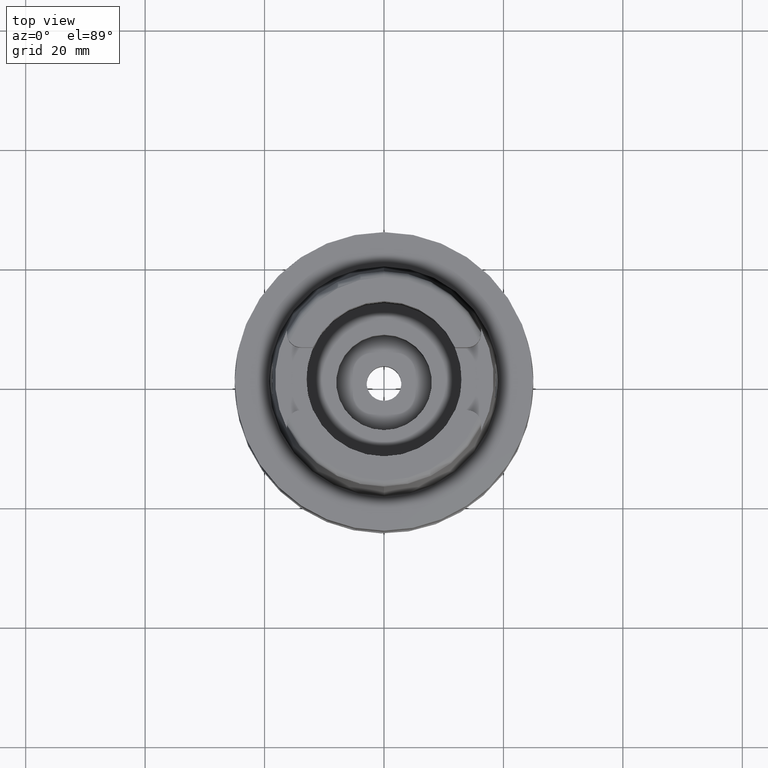
[diagram: clean part render]
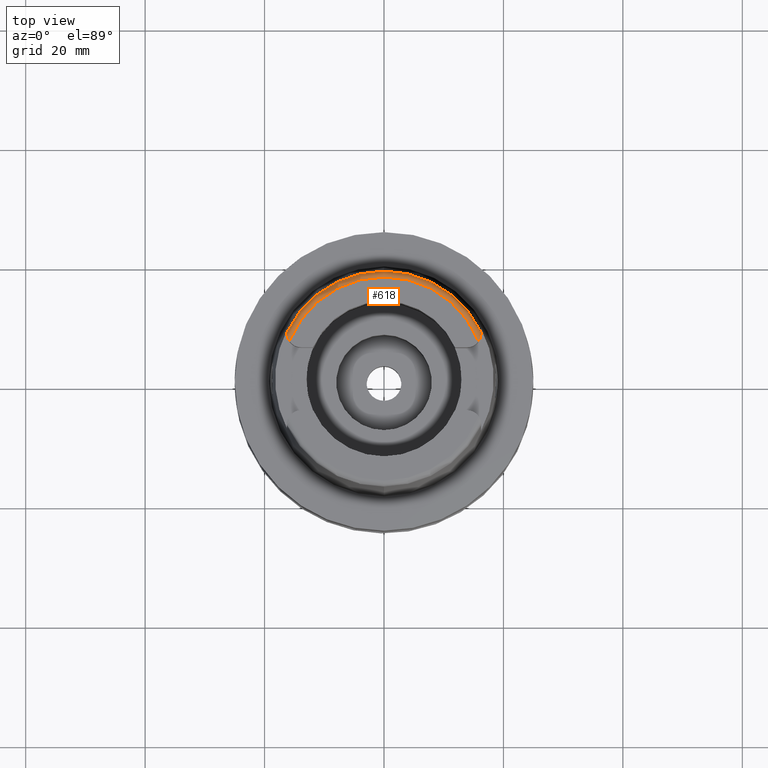
[diagram: same view with one face highlighted and labeled with its STEP entity id]
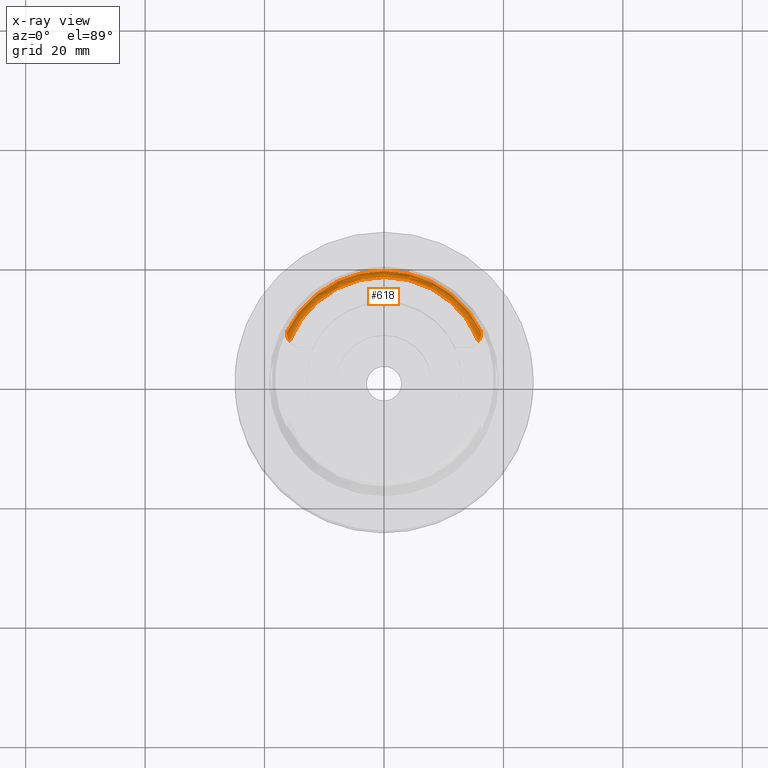
[diagram: x-ray of the same camera — body ghosted, the highlighted face saturated]
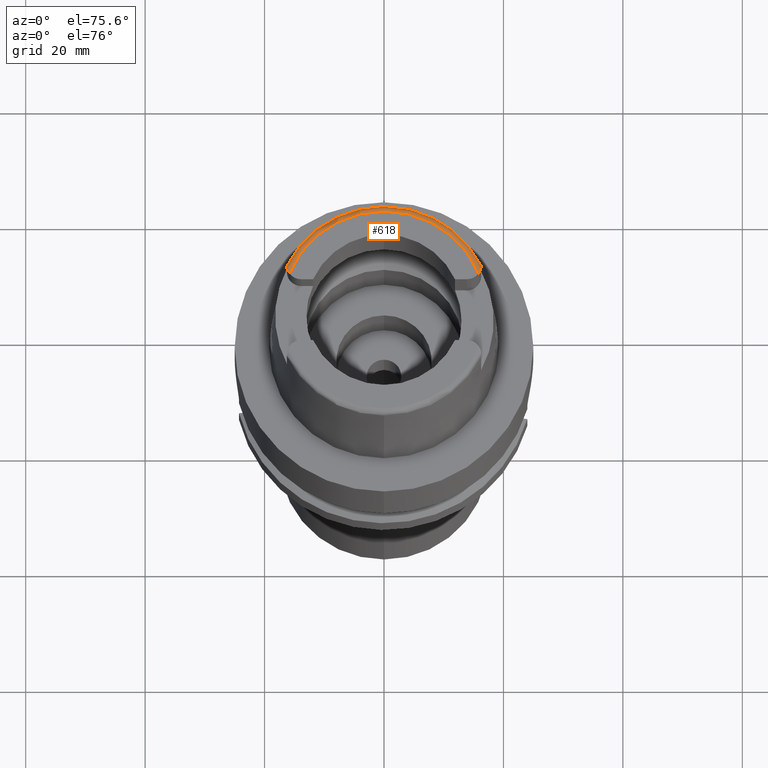
[diagram: same view with one face highlighted and labeled with its STEP entity id]
A machine part, top view. The second image highlights one B-rep face of the part: STEP entity #618.
The next image is the same camera in x-ray: the body ghosted, the highlighted face saturated — about 0% of this face is hidden behind the body in this view.
A second angle (auxiliary view) of the same face is appended — the face is thin or edge-on in the first view.
In plain terms, the highlighted toroidal blend (fillet) surface has major radius 17.0488 mm and minor (blend) radius 1 mm.
Its self-contained STEP definition (entity closure, byte-faithful):
#43 = FACE_OUTER_BOUND ( 'NONE', #3732, .T. ) ;
#183 = CARTESIAN_POINT ( 'NONE',  ( -16.18554076064008385, 7.055521886518313579, 24.79586306668399232 ) ) ;
#230 = DIRECTION ( 'NONE',  ( -0.0008255998758100714869, -0.9999996591923645539, 0.0000000000000000000 ) ) ;
#258 = CARTESIAN_POINT ( 'NONE',  ( -16.26000000000000156, 7.649999999999999467, 24.38968791394999869 ) ) ;
#342 = EDGE_CURVE ( 'NONE', #2252, #1359, #4724, .T. ) ;
#439 = EDGE_CURVE ( 'NONE', #644, #2252, #801, .T. ) ;
#593 = CARTESIAN_POINT ( 'NONE',  ( -16.12967067124113640, 6.861665314423088802, 24.88364652657513432 ) ) ;
#605 = CARTESIAN_POINT ( 'NONE',  ( 16.20468902184572713, 7.121967773455988748, 24.76576639495302246 ) ) ;
#618 = ADVANCED_FACE ( 'NONE', ( #43 ), #4063, .T. ) ;
#644 = VERTEX_POINT ( 'NONE', #4825 ) ;
#670 = CARTESIAN_POINT ( 'NONE',  ( -15.84131538932999739, 6.301800480794000237, 25.00000000000000000 ) ) ;
#680 = EDGE_CURVE ( 'NONE', #3957, #4911, #1752, .T. ) ;
#741 = EDGE_CURVE ( 'NONE', #1711, #4679, #4882, .T. ) ;
#801 = B_SPLINE_CURVE_WITH_KNOTS ( 'NONE', 3,
 ( #1116, #4917, #1092, #4489 ),
 .UNSPECIFIED., .F., .F.,
 ( 4, 4 ),
 ( 0.0000000000000000000, 1.000000000000000000 ),
 .UNSPECIFIED. ) ;
#828 = ORIENTED_EDGE ( 'NONE', *, *, #342, .F. ) ;
#851 = B_SPLINE_CURVE_WITH_KNOTS ( 'NONE', 3,
 ( #1052, #3111, #1869, #4401 ),
 .UNSPECIFIED., .F., .F.,
 ( 4, 4 ),
 ( 0.0000000000000000000, 1.000000000000000000 ),
 .UNSPECIFIED. ) ;
#877 = CIRCLE ( 'NONE', #2205, 17.04875252221999560 ) ;
#980 = ORIENTED_EDGE ( 'NONE', *, *, #2753, .F. ) ;
#1015 = CARTESIAN_POINT ( 'NONE',  ( 16.03650687744163505, 6.642597593092695263, 24.95134675376048605 ) ) ;
#1025 = CARTESIAN_POINT ( 'NONE',  ( 15.84131538932999739, 6.301800480795000325, 25.00000000000000000 ) ) ;
#1038 = AXIS2_PLACEMENT_3D ( 'NONE', #3086, #3168, #230 ) ;
#1052 = CARTESIAN_POINT ( 'NONE',  ( -16.26000000000000156, 7.649999999999999467, 24.38968791394999869 ) ) ;
#1060 = CARTESIAN_POINT ( 'NONE',  ( -15.96625585798465785, 6.504189616315832367, 24.98176062403130970 ) ) ;
#1092 = CARTESIAN_POINT ( 'NONE',  ( 16.26000000000000156, 7.756962572982235571, 24.28207357286040491 ) ) ;
#1097 = CARTESIAN_POINT ( 'NONE',  ( 16.26000000000000156, 7.649999999999999467, 24.38968791394999869 ) ) ;
#1116 = CARTESIAN_POINT ( 'NONE',  ( 16.25997406183000393, 7.831071151783000950, 24.04993752584000077 ) ) ;
#1339 = ORIENTED_EDGE ( 'NONE', *, *, #3351, .F. ) ;
#1359 = VERTEX_POINT ( 'NONE', #1025 ) ;
#1448 = CARTESIAN_POINT ( 'NONE',  ( 16.25906981596299516, 7.568094461879278256, 24.46716170229239751 ) ) ;
#1459 = CARTESIAN_POINT ( 'NONE',  ( -16.23496557060675372, 7.304328783145807691, 24.65775830273903324 ) ) ;
#1472 = CARTESIAN_POINT ( 'NONE',  ( 16.05117478004920173, 6.674543088104194943, 24.94264063999501602 ) ) ;
#1495 = CARTESIAN_POINT ( 'NONE',  ( 16.26000000000000512, 7.611323203165833995, 24.42860038482855956 ) ) ;
#1522 = CARTESIAN_POINT ( 'NONE',  ( 16.25516810167746939, 7.496549958051121010, 24.52447694836609315 ) ) ;
#1545 = CARTESIAN_POINT ( 'NONE',  ( 15.96834533945842516, 6.501558406581732008, 24.98609907250299500 ) ) ;
#1711 = VERTEX_POINT ( 'NONE', #2991 ) ;
#1752 = CIRCLE ( 'NONE', #3607, 18.04750486565000145 ) ;
#1841 = DIRECTION ( 'NONE',  ( -0.9009556354130529021, 0.4339112155930774928, 0.0000000000000000000 ) ) ;
#1869 = CARTESIAN_POINT ( 'NONE',  ( -16.26000000000000156, 7.817317801012321432, 24.16880882101343886 ) ) ;
#1877 = CARTESIAN_POINT ( 'NONE',  ( -16.21967615664465967, 7.212592958068883675, 24.71249920125627142 ) ) ;
#1896 = CARTESIAN_POINT ( 'NONE',  ( -16.26000040461999774, 7.831014550164000276, 24.04994510391000162 ) ) ;
#2191 = AXIS2_PLACEMENT_3D ( 'NONE', #2957, #3748, #4637 ) ;
#2205 = AXIS2_PLACEMENT_3D ( 'NONE', #2572, #5472, #2985 ) ;
#2252 = VERTEX_POINT ( 'NONE', #2408 ) ;
#2280 = CARTESIAN_POINT ( 'NONE',  ( -15.90587674391639261, 6.399456462586288197, 24.99652583314882293 ) ) ;
#2326 = CARTESIAN_POINT ( 'NONE',  ( 15.90697457532996850, 6.397319259819720827, 24.99999999999999645 ) ) ;
#2336 = CARTESIAN_POINT ( 'NONE',  ( 0.0000000000000000000, 0.0000000000000000000, 24.04993752584000077 ) ) ;
#2337 = CARTESIAN_POINT ( 'NONE',  ( 0.0000000000000000000, 18.04750486565000145, 24.04993752584000077 ) ) ;
#2408 = CARTESIAN_POINT ( 'NONE',  ( 16.26000000000000156, 7.649999999999999467, 24.38968791394999869 ) ) ;
#2436 = ORIENTED_EDGE ( 'NONE', *, *, #741, .F. ) ;
#2572 = CARTESIAN_POINT ( 'NONE',  ( 0.0000000000000000000, 0.0000000000000000000, 25.00000000000000000 ) ) ;
#2671 = CARTESIAN_POINT ( 'NONE',  ( -16.20091124494840074, 7.119143384441859901, 24.76404916784067112 ) ) ;
#2696 = CARTESIAN_POINT ( 'NONE',  ( -15.95142052834806812, 6.477598223787882858, 24.98610333259528105 ) ) ;
#2707 = CARTESIAN_POINT ( 'NONE',  ( 16.14804313198780861, 6.925410722144819786, 24.85478500402254198 ) ) ;
#2719 = DIRECTION ( 'NONE',  ( 0.0000000000000000000, 0.0000000000000000000, -1.000000000000000000 ) ) ;
#2753 = EDGE_CURVE ( 'NONE', #4911, #644, #4686, .T. ) ;
#2787 = CARTESIAN_POINT ( 'NONE',  ( 16.24635612508560456, 7.393772195971195949, 24.59922458510065013 ) ) ;
#2957 = CARTESIAN_POINT ( 'NONE',  ( 0.0000000000000000000, 0.0000000000000000000, 24.04993752584000077 ) ) ;
#2985 = DIRECTION ( 'NONE',  ( -0.9291773910543710269, 0.3696341109169885564, 0.0000000000000000000 ) ) ;
#2991 = CARTESIAN_POINT ( 'NONE',  ( -15.84131538932999739, 6.301800480794000237, 25.00000000000000000 ) ) ;
#3086 = CARTESIAN_POINT ( 'NONE',  ( 0.0000000000000000000, 0.0000000000000000000, 24.00000000000000000 ) ) ;
#3111 = CARTESIAN_POINT ( 'NONE',  ( -16.26000000000000156, 7.756979617624322643, 24.28205642436010336 ) ) ;
#3133 = CARTESIAN_POINT ( 'NONE',  ( 16.12647088039700449, 6.861143724296863589, 24.88072019579882266 ) ) ;
#3155 = CARTESIAN_POINT ( 'NONE',  ( 15.84131538932999739, 6.301800480795000325, 25.00000000000000000 ) ) ;
#3168 = DIRECTION ( 'NONE',  ( 0.0000000000000000000, 0.0000000000000000000, 1.000000000000000000 ) ) ;
#3197 = CARTESIAN_POINT ( 'NONE',  ( -16.23935494077172947, 7.335910855000000730, 24.63767207810960969 ) ) ;
#3272 = ORIENTED_EDGE ( 'NONE', *, *, #680, .F. ) ;
#3279 = CARTESIAN_POINT ( 'NONE',  ( -16.26000000000000156, 7.649999999999999467, 24.38968791394999869 ) ) ;
#3351 = EDGE_CURVE ( 'NONE', #4679, #3957, #851, .T. ) ;
#3578 = ORIENTED_EDGE ( 'NONE', *, *, #3729, .T. ) ;
#3605 = CARTESIAN_POINT ( 'NONE',  ( -15.99515335809936367, 6.558454667888338641, 24.97133812347777138 ) ) ;
#3607 = AXIS2_PLACEMENT_3D ( 'NONE', #2336, #2719, #1841 ) ;
#3729 = EDGE_CURVE ( 'NONE', #1711, #1359, #877, .T. ) ;
#3732 = EDGE_LOOP ( 'NONE', ( #3578, #828, #5090, #980, #3272, #1339, #2436 ) ) ;
#3748 = DIRECTION ( 'NONE',  ( 0.0000000000000000000, 0.0000000000000000000, -1.000000000000000000 ) ) ;
#3957 = VERTEX_POINT ( 'NONE', #1896 ) ;
#3983 = CARTESIAN_POINT ( 'NONE',  ( -16.08058035240569694, 6.733786588547267193, 24.92888816074173874 ) ) ;
#4062 = CARTESIAN_POINT ( 'NONE',  ( -15.87413174455794262, 6.349540612442419629, 24.99999999999999289 ) ) ;
#4063 = TOROIDAL_SURFACE ( 'NONE', #1038, 17.04875252221999560, 1.000000000000000000 ) ;
#4077 = CARTESIAN_POINT ( 'NONE',  ( 16.25344741752731892, 7.471586145477474794, 24.54349424203698860 ) ) ;
#4401 = CARTESIAN_POINT ( 'NONE',  ( -16.26000040461999774, 7.831014550164000276, 24.04994510391000162 ) ) ;
#4406 = CARTESIAN_POINT ( 'NONE',  ( -16.00841666764786453, 6.584475460020398074, 24.96566545704687101 ) ) ;
#4474 = CARTESIAN_POINT ( 'NONE',  ( 16.22839670243273247, 7.245355834585446964, 24.69784615082136625 ) ) ;
#4483 = CARTESIAN_POINT ( 'NONE',  ( -16.26000000000000867, 7.572638004034232040, 24.46752130921433732 ) ) ;
#4489 = CARTESIAN_POINT ( 'NONE',  ( 16.26000000000000156, 7.649999999999999467, 24.38968791394999869 ) ) ;
#4637 = DIRECTION ( 'NONE',  ( 0.0000000000000000000, 1.000000000000000000, 0.0000000000000000000 ) ) ;
#4679 = VERTEX_POINT ( 'NONE', #3279 ) ;
#4686 = CIRCLE ( 'NONE', #2191, 18.04750486565000145 ) ;
#4724 = B_SPLINE_CURVE_WITH_KNOTS ( 'NONE', 3,
 ( #1097, #1495, #1448, #1522, #4077, #4943, #2787, #4474, #605, #2707, #3133, #4838, #5285, #1472, #1015, #1545, #2326, #3155 ),
 .UNSPECIFIED., .F., .F.,
 ( 4, 2, 2, 2, 2, 2, 2, 2, 4 ),
 ( 0.0000000000000000000, 0.1250000000000021649, 0.1875000000000024147, 0.2500000000000026645, 0.5000000000000051070, 0.6250000000000065503, 0.6875000000000066613, 0.7500000000000067724, 1.000000000000000000 ),
 .UNSPECIFIED. ) ;
#4825 = CARTESIAN_POINT ( 'NONE',  ( 16.25997406183000393, 7.831071151783000950, 24.04993752584000077 ) ) ;
#4838 = CARTESIAN_POINT ( 'NONE',  ( 16.09036084666226429, 6.766916573822472358, 24.91401646659290492 ) ) ;
#4882 = B_SPLINE_CURVE_WITH_KNOTS ( 'NONE', 3,
 ( #670, #4062, #2280, #2696, #1060, #3605, #4406, #3983, #593, #183, #2671, #1877, #5272, #1459, #3197, #5326, #4483, #258 ),
 .UNSPECIFIED., .F., .F.,
 ( 4, 2, 2, 2, 2, 2, 2, 2, 4 ),
 ( 0.0000000000000000000, 0.1250000000000023315, 0.1875000000000013600, 0.2500000000000003886, 0.4999999999999979461, 0.6249999999999981126, 0.6874999999999970024, 0.7499999999999960032, 1.000000000000000000 ),
 .UNSPECIFIED. ) ;
#4911 = VERTEX_POINT ( 'NONE', #2337 ) ;
#4917 = CARTESIAN_POINT ( 'NONE',  ( 16.26000000000000156, 7.817315016195341748, 24.16882291091421564 ) ) ;
#4943 = CARTESIAN_POINT ( 'NONE',  ( 16.24895309171505176, 7.419467146579104444, 24.58135325267140558 ) ) ;
#5090 = ORIENTED_EDGE ( 'NONE', *, *, #439, .F. ) ;
#5272 = CARTESIAN_POINT ( 'NONE',  ( -16.22521617187599929, 7.243413556453329072, 24.69467769267489743 ) ) ;
#5285 = CARTESIAN_POINT ( 'NONE',  ( 16.07769908709887474, 6.735869355588694596, 24.92418080404587144 ) ) ;
#5326 = CARTESIAN_POINT ( 'NONE',  ( -16.25642365100316056, 7.476984764354736690, 24.54393345577880936 ) ) ;
#5472 = DIRECTION ( 'NONE',  ( 0.0000000000000000000, 0.0000000000000000000, -1.000000000000000000 ) ) ;